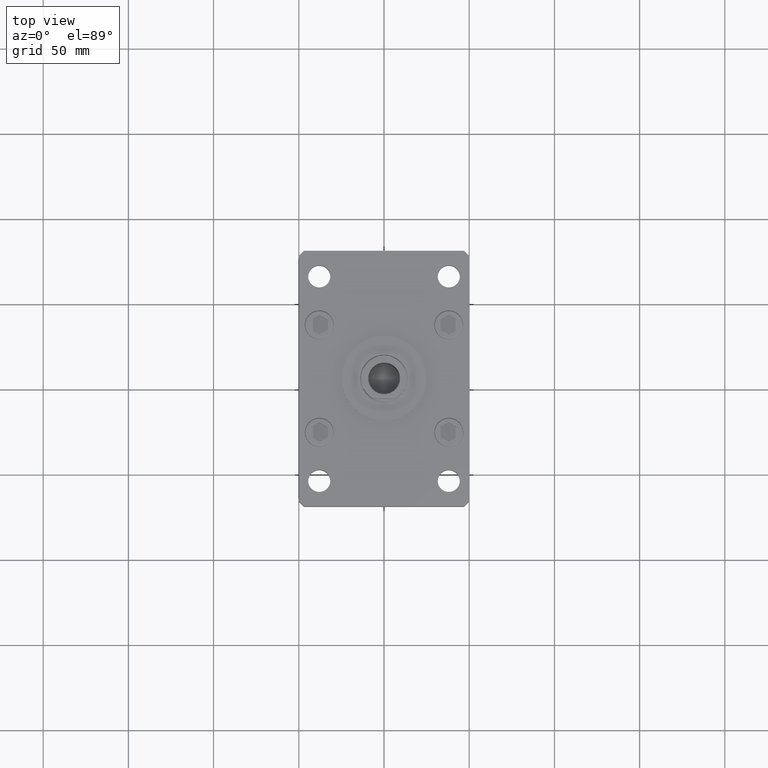
[diagram: clean part render]
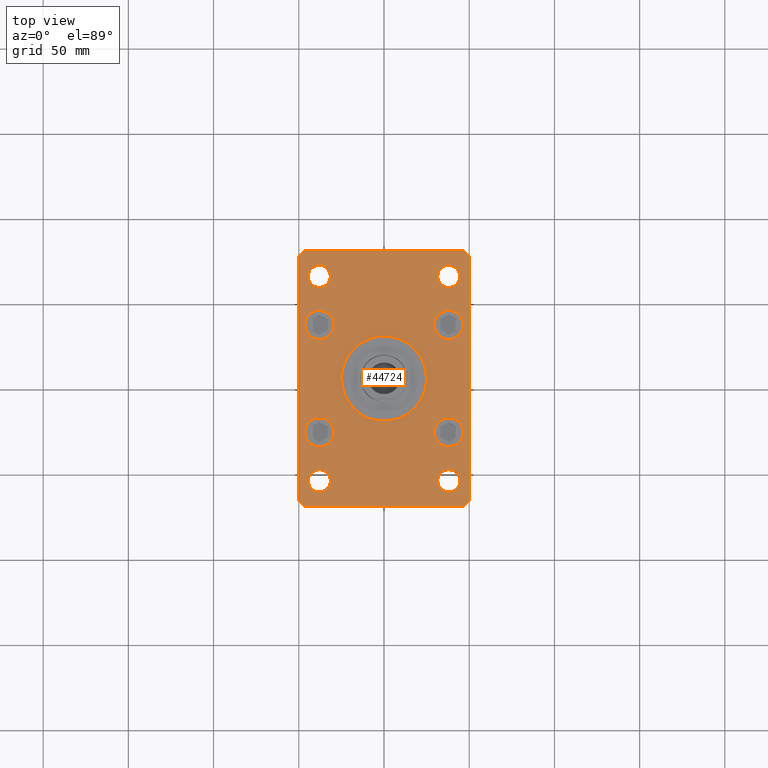
[diagram: same view with one face highlighted and labeled with its STEP entity id]
A machine part, top view. The second image highlights one B-rep face of the part: STEP entity #44724.
In plain terms, the highlighted planar face has unit normal (0, 0, 1).
Its self-contained STEP definition (entity closure, byte-faithful):
#54 = DIRECTION ( 'NONE',  ( 0.000000000000000000, 1.000000000000000000, 0.000000000000000000 ) ) ;
#81 = CARTESIAN_POINT ( 'NONE',  ( 47.00000000000002842, 75.00000000000002842, 20.00000000000000000 ) ) ;
#283 = ORIENTED_EDGE ( 'NONE', *, *, #19883, .F. ) ;
#544 = CARTESIAN_POINT ( 'NONE',  ( 0.000000000000000000, 0.000000000000000000, 20.00000000000000000 ) ) ;
#579 = DIRECTION ( 'NONE',  ( 1.000000000000000000, 0.000000000000000000, 0.000000000000000000 ) ) ;
#723 = CIRCLE ( 'NONE', #48583, 6.499999999999999112 ) ;
#762 = AXIS2_PLACEMENT_3D ( 'NONE', #33030, #49387, #24833 ) ;
#860 = VERTEX_POINT ( 'NONE', #41562 ) ;
#945 = CIRCLE ( 'NONE', #27060, 6.499999999999999112 ) ;
#1410 = VERTEX_POINT ( 'NONE', #44909 ) ;
#1613 = AXIS2_PLACEMENT_3D ( 'NONE', #43354, #26454, #13903 ) ;
#1641 = DIRECTION ( 'NONE',  ( 0.7071067811865459074, 0.7071067811865491270, 0.000000000000000000 ) ) ;
#2108 = ORIENTED_EDGE ( 'NONE', *, *, #11136, .T. ) ;
#2305 = CARTESIAN_POINT ( 'NONE',  ( 50.00000000000000000, 72.00000000000001421, 20.00000000000000000 ) ) ;
#2529 = DIRECTION ( 'NONE',  ( 1.000000000000000000, 0.000000000000000000, 0.000000000000000000 ) ) ;
#2579 = LINE ( 'NONE', #53019, #33737 ) ;
#2664 = CARTESIAN_POINT ( 'NONE',  ( 47.00000000000001421, -74.99999999999988631, 20.00000000000000000 ) ) ;
#2931 = DIRECTION ( 'NONE',  ( 0.000000000000000000, 0.000000000000000000, 1.000000000000000000 ) ) ;
#3053 = DIRECTION ( 'NONE',  ( 0.000000000000000000, 0.000000000000000000, 1.000000000000000000 ) ) ;
#3127 = DIRECTION ( 'NONE',  ( 0.000000000000000000, 0.000000000000000000, 1.000000000000000000 ) ) ;
#3198 = EDGE_CURVE ( 'NONE', #41342, #9299, #31098, .T. ) ;
#3334 = DIRECTION ( 'NONE',  ( 0.000000000000000000, 0.000000000000000000, 1.000000000000000000 ) ) ;
#3470 = AXIS2_PLACEMENT_3D ( 'NONE', #39918, #3053, #15873 ) ;
#3713 = ORIENTED_EDGE ( 'NONE', *, *, #15737, .F. ) ;
#4234 = EDGE_LOOP ( 'NONE', ( #283, #26803 ) ) ;
#4297 = DIRECTION ( 'NONE',  ( 0.000000000000000000, 0.000000000000000000, 1.000000000000000000 ) ) ;
#4326 = VECTOR ( 'NONE', #54, 1000.000000000000000 ) ;
#4356 = FACE_OUTER_BOUND ( 'NONE', #24127, .T. ) ;
#4362 = AXIS2_PLACEMENT_3D ( 'NONE', #544, #33825, #50450 ) ;
#4592 = EDGE_LOOP ( 'NONE', ( #10708, #17007 ) ) ;
#4666 = VERTEX_POINT ( 'NONE', #19176 ) ;
#4924 = CARTESIAN_POINT ( 'NONE',  ( -47.00000000000002842, 75.00000000000000000, 20.00000000000000000 ) ) ;
#5116 = DIRECTION ( 'NONE',  ( -0.7071067811865459074, -0.7071067811865491270, 0.000000000000000000 ) ) ;
#5373 = DIRECTION ( 'NONE',  ( 1.000000000000000000, 0.000000000000000000, 0.000000000000000000 ) ) ;
#5549 = DIRECTION ( 'NONE',  ( 1.000000000000000000, 0.000000000000000000, 0.000000000000000000 ) ) ;
#5663 = ORIENTED_EDGE ( 'NONE', *, *, #3198, .F. ) ;
#5810 = DIRECTION ( 'NONE',  ( 0.000000000000000000, 0.000000000000000000, 1.000000000000000000 ) ) ;
#6004 = VERTEX_POINT ( 'NONE', #43233 ) ;
#6076 = CARTESIAN_POINT ( 'NONE',  ( -38.00000000000000711, 31.50000000000000000, 20.00000000000000000 ) ) ;
#6080 = DIRECTION ( 'NONE',  ( 1.000000000000000000, 0.000000000000000000, 0.000000000000000000 ) ) ;
#6133 = CARTESIAN_POINT ( 'NONE',  ( -44.49999999999997868, -60.00000000000000711, 20.00000000000000000 ) ) ;
#6474 = VERTEX_POINT ( 'NONE', #51222 ) ;
#6527 = VERTEX_POINT ( 'NONE', #18458 ) ;
#6558 = EDGE_LOOP ( 'NONE', ( #5663, #47607 ) ) ;
#6606 = CIRCLE ( 'NONE', #37994, 6.499999999999999112 ) ;
#7422 = CARTESIAN_POINT ( 'NONE',  ( -37.99999999999999289, 59.99999999999999289, 20.00000000000000000 ) ) ;
#7537 = AXIS2_PLACEMENT_3D ( 'NONE', #53656, #2931, #16015 ) ;
#7880 = ORIENTED_EDGE ( 'NONE', *, *, #40442, .F. ) ;
#7892 = CARTESIAN_POINT ( 'NONE',  ( -31.49999999999997868, -60.00000000000000711, 20.00000000000000000 ) ) ;
#8117 = EDGE_CURVE ( 'NONE', #53841, #28875, #29208, .T. ) ;
#8419 = ORIENTED_EDGE ( 'NONE', *, *, #44319, .F. ) ;
#8432 = FACE_BOUND ( 'NONE', #23503, .T. ) ;
#8853 = EDGE_CURVE ( 'NONE', #51268, #49509, #2579, .T. ) ;
#8859 = CIRCLE ( 'NONE', #46346, 8.499999999999992895 ) ;
#9181 = EDGE_LOOP ( 'NONE', ( #32046, #16807 ) ) ;
#9299 = VERTEX_POINT ( 'NONE', #24040 ) ;
#9786 = AXIS2_PLACEMENT_3D ( 'NONE', #51383, #27097, #35017 ) ;
#10358 = ORIENTED_EDGE ( 'NONE', *, *, #33056, .T. ) ;
#10385 = CARTESIAN_POINT ( 'NONE',  ( -25.00000000000000000, 0.000000000000000000, 20.00000000000000000 ) ) ;
#10451 = CARTESIAN_POINT ( 'NONE',  ( -46.50000000000000711, 31.50000000000000000, 20.00000000000000000 ) ) ;
#10669 = AXIS2_PLACEMENT_3D ( 'NONE', #6076, #5810, #5549 ) ;
#10708 = ORIENTED_EDGE ( 'NONE', *, *, #41456, .F. ) ;
#10980 = DIRECTION ( 'NONE',  ( 0.000000000000000000, 0.000000000000000000, 1.000000000000000000 ) ) ;
#11052 = DIRECTION ( 'NONE',  ( 0.000000000000000000, 0.000000000000000000, 1.000000000000000000 ) ) ;
#11136 = EDGE_CURVE ( 'NONE', #28875, #37137, #47199, .T. ) ;
#11190 = CARTESIAN_POINT ( 'NONE',  ( 31.49999999999997868, -60.00000000000000711, 20.00000000000000000 ) ) ;
#11193 = CIRCLE ( 'NONE', #762, 8.499999999999992895 ) ;
#11779 = DIRECTION ( 'NONE',  ( 0.000000000000000000, 0.000000000000000000, 1.000000000000000000 ) ) ;
#11992 = AXIS2_PLACEMENT_3D ( 'NONE', #29677, #4297, #5373 ) ;
#12187 = CARTESIAN_POINT ( 'NONE',  ( 50.00000000000000000, -71.99999999999988631, 20.00000000000000000 ) ) ;
#12322 = CARTESIAN_POINT ( 'NONE',  ( 50.00000000000000000, -71.99999999999988631, 20.00000000000000000 ) ) ;
#12537 = FACE_BOUND ( 'NONE', #4234, .T. ) ;
#13010 = CIRCLE ( 'NONE', #19958, 8.499999999999992895 ) ;
#13080 = FACE_BOUND ( 'NONE', #45528, .T. ) ;
#13143 = ORIENTED_EDGE ( 'NONE', *, *, #40531, .T. ) ;
#13365 = VERTEX_POINT ( 'NONE', #6133 ) ;
#13390 = DIRECTION ( 'NONE',  ( 0.000000000000000000, 0.000000000000000000, 1.000000000000000000 ) ) ;
#13761 = VECTOR ( 'NONE', #1641, 1000.000000000000114 ) ;
#13903 = DIRECTION ( 'NONE',  ( 1.000000000000000000, 0.000000000000000000, 0.000000000000000000 ) ) ;
#14186 = EDGE_CURVE ( 'NONE', #25294, #18160, #15561, .T. ) ;
#14191 = CIRCLE ( 'NONE', #27277, 6.499999999999999112 ) ;
#14930 = ORIENTED_EDGE ( 'NONE', *, *, #8117, .T. ) ;
#15086 = CARTESIAN_POINT ( 'NONE',  ( -50.00000000000001421, 72.00000000000000000, 20.00000000000000000 ) ) ;
#15561 = CIRCLE ( 'NONE', #34750, 25.00000000000000000 ) ;
#15595 = EDGE_CURVE ( 'NONE', #30275, #53841, #30670, .T. ) ;
#15657 = CIRCLE ( 'NONE', #3470, 6.499999999999999112 ) ;
#15696 = EDGE_CURVE ( 'NONE', #52929, #44799, #52453, .T. ) ;
#15737 = EDGE_CURVE ( 'NONE', #6004, #48142, #24631, .T. ) ;
#15863 = EDGE_CURVE ( 'NONE', #48142, #6004, #29877, .T. ) ;
#15873 = DIRECTION ( 'NONE',  ( 1.000000000000000000, 0.000000000000000000, 0.000000000000000000 ) ) ;
#16015 = DIRECTION ( 'NONE',  ( 1.000000000000000000, 0.000000000000000000, 0.000000000000000000 ) ) ;
#16177 = DIRECTION ( 'NONE',  ( 0.000000000000000000, 0.000000000000000000, 1.000000000000000000 ) ) ;
#16807 = ORIENTED_EDGE ( 'NONE', *, *, #17606, .F. ) ;
#17007 = ORIENTED_EDGE ( 'NONE', *, *, #40830, .F. ) ;
#17039 = CARTESIAN_POINT ( 'NONE',  ( -37.99999999999997868, -60.00000000000000711, 20.00000000000000000 ) ) ;
#17606 = EDGE_CURVE ( 'NONE', #6527, #40120, #14191, .T. ) ;
#18160 = VERTEX_POINT ( 'NONE', #10385 ) ;
#18458 = CARTESIAN_POINT ( 'NONE',  ( -31.49999999999999289, 59.99999999999999289, 20.00000000000000000 ) ) ;
#18682 = ORIENTED_EDGE ( 'NONE', *, *, #22777, .T. ) ;
#18886 = DIRECTION ( 'NONE',  ( 0.000000000000000000, 0.000000000000000000, 1.000000000000000000 ) ) ;
#19176 = CARTESIAN_POINT ( 'NONE',  ( -29.50000000000000711, -31.50000000000000000, 20.00000000000000000 ) ) ;
#19342 = VECTOR ( 'NONE', #22718, 1000.000000000000114 ) ;
#19883 = EDGE_CURVE ( 'NONE', #18160, #25294, #34344, .T. ) ;
#19958 = AXIS2_PLACEMENT_3D ( 'NONE', #52437, #18886, #6080 ) ;
#20456 = VERTEX_POINT ( 'NONE', #47769 ) ;
#20917 = CARTESIAN_POINT ( 'NONE',  ( -47.00000000000000000, -75.00000000000000000, 20.00000000000000000 ) ) ;
#21267 = FACE_BOUND ( 'NONE', #4592, .T. ) ;
#21627 = VECTOR ( 'NONE', #26857, 1000.000000000000000 ) ;
#21816 = CARTESIAN_POINT ( 'NONE',  ( 0.000000000000000000, 0.000000000000000000, 20.00000000000000000 ) ) ;
#21923 = CIRCLE ( 'NONE', #28900, 8.500000000000000000 ) ;
#22062 = EDGE_LOOP ( 'NONE', ( #7880, #33837 ) ) ;
#22718 = DIRECTION ( 'NONE',  ( 0.7071067811865474617, -0.7071067811865474617, 0.000000000000000000 ) ) ;
#22777 = EDGE_CURVE ( 'NONE', #42298, #30275, #48051, .T. ) ;
#23503 = EDGE_LOOP ( 'NONE', ( #39885, #3713 ) ) ;
#24040 = CARTESIAN_POINT ( 'NONE',  ( 44.49999999999997868, -60.00000000000000711, 20.00000000000000000 ) ) ;
#24076 = DIRECTION ( 'NONE',  ( 1.000000000000000000, 0.000000000000000000, 0.000000000000000000 ) ) ;
#24127 = EDGE_LOOP ( 'NONE', ( #14930, #2108, #37356, #40391, #13143, #10358, #18682, #37039 ) ) ;
#24261 = CIRCLE ( 'NONE', #1613, 8.499999999999992895 ) ;
#24631 = CIRCLE ( 'NONE', #10669, 8.500000000000000000 ) ;
#24833 = DIRECTION ( 'NONE',  ( 1.000000000000000000, 0.000000000000000000, 0.000000000000000000 ) ) ;
#25031 = CARTESIAN_POINT ( 'NONE',  ( -49.99999999999998579, -72.00000000000001421, 20.00000000000000000 ) ) ;
#25087 = FACE_BOUND ( 'NONE', #9181, .T. ) ;
#25294 = VERTEX_POINT ( 'NONE', #26375 ) ;
#25304 = CARTESIAN_POINT ( 'NONE',  ( -44.49999999999999289, 59.99999999999999289, 20.00000000000000000 ) ) ;
#25362 = FACE_BOUND ( 'NONE', #6558, .T. ) ;
#25397 = CARTESIAN_POINT ( 'NONE',  ( 0.000000000000000000, 0.000000000000000000, 20.00000000000000000 ) ) ;
#25581 = LINE ( 'NONE', #46317, #52823 ) ;
#26375 = CARTESIAN_POINT ( 'NONE',  ( 25.00000000000000000, 3.061616997868383043E-15, 20.00000000000000000 ) ) ;
#26454 = DIRECTION ( 'NONE',  ( 0.000000000000000000, 0.000000000000000000, 1.000000000000000000 ) ) ;
#26803 = ORIENTED_EDGE ( 'NONE', *, *, #14186, .F. ) ;
#26804 = DIRECTION ( 'NONE',  ( 1.927470528863118802E-16, -1.000000000000000000, 0.000000000000000000 ) ) ;
#26857 = DIRECTION ( 'NONE',  ( -1.000000000000000000, -2.952720810173287140E-16, 0.000000000000000000 ) ) ;
#27060 = AXIS2_PLACEMENT_3D ( 'NONE', #7422, #10980, #24076 ) ;
#27097 = DIRECTION ( 'NONE',  ( 0.000000000000000000, 0.000000000000000000, 1.000000000000000000 ) ) ;
#27277 = AXIS2_PLACEMENT_3D ( 'NONE', #40522, #3127, #49236 ) ;
#28214 = AXIS2_PLACEMENT_3D ( 'NONE', #21816, #31074, #43618 ) ;
#28642 = VERTEX_POINT ( 'NONE', #7892 ) ;
#28875 = VERTEX_POINT ( 'NONE', #2664 ) ;
#28900 = AXIS2_PLACEMENT_3D ( 'NONE', #41307, #16177, #53008 ) ;
#29208 = LINE ( 'NONE', #36846, #47670 ) ;
#29345 = EDGE_CURVE ( 'NONE', #28642, #13365, #6606, .T. ) ;
#29677 = CARTESIAN_POINT ( 'NONE',  ( -38.00000000000000711, -31.50000000000000000, 20.00000000000000000 ) ) ;
#29877 = CIRCLE ( 'NONE', #43797, 8.500000000000000000 ) ;
#29891 = ORIENTED_EDGE ( 'NONE', *, *, #47025, .F. ) ;
#30229 = VERTEX_POINT ( 'NONE', #37051 ) ;
#30275 = VERTEX_POINT ( 'NONE', #25031 ) ;
#30645 = CARTESIAN_POINT ( 'NONE',  ( -50.00000000000001421, 72.00000000000000000, 20.00000000000000000 ) ) ;
#30670 = LINE ( 'NONE', #39382, #19342 ) ;
#31074 = DIRECTION ( 'NONE',  ( 0.000000000000000000, 0.000000000000000000, 1.000000000000000000 ) ) ;
#31098 = CIRCLE ( 'NONE', #7537, 6.499999999999999112 ) ;
#31806 = CARTESIAN_POINT ( 'NONE',  ( 37.99999999999999289, 31.49999999999999289, 20.00000000000000000 ) ) ;
#32046 = ORIENTED_EDGE ( 'NONE', *, *, #48195, .F. ) ;
#32261 = DIRECTION ( 'NONE',  ( 1.000000000000000000, 0.000000000000000000, 0.000000000000000000 ) ) ;
#32792 = CARTESIAN_POINT ( 'NONE',  ( -38.00000000000000711, 31.50000000000000000, 20.00000000000000000 ) ) ;
#33030 = CARTESIAN_POINT ( 'NONE',  ( 37.99999999999999289, -31.49999999999999289, 20.00000000000000000 ) ) ;
#33056 = EDGE_CURVE ( 'NONE', #34822, #42298, #25581, .T. ) ;
#33554 = FACE_BOUND ( 'NONE', #44936, .T. ) ;
#33698 = DIRECTION ( 'NONE',  ( 0.000000000000000000, 0.000000000000000000, 1.000000000000000000 ) ) ;
#33737 = VECTOR ( 'NONE', #52750, 1000.000000000000000 ) ;
#33825 = DIRECTION ( 'NONE',  ( 0.000000000000000000, 0.000000000000000000, 1.000000000000000000 ) ) ;
#33837 = ORIENTED_EDGE ( 'NONE', *, *, #29345, .F. ) ;
#34344 = CIRCLE ( 'NONE', #28214, 25.00000000000000000 ) ;
#34750 = AXIS2_PLACEMENT_3D ( 'NONE', #25397, #13390, #579 ) ;
#34822 = VERTEX_POINT ( 'NONE', #4924 ) ;
#35017 = DIRECTION ( 'NONE',  ( 1.000000000000000000, 0.000000000000000000, 0.000000000000000000 ) ) ;
#35042 = LINE ( 'NONE', #39147, #21627 ) ;
#35156 = CARTESIAN_POINT ( 'NONE',  ( 31.50000000000000000, 59.99999999999998579, 20.00000000000000000 ) ) ;
#36846 = CARTESIAN_POINT ( 'NONE',  ( -47.00000000000000000, -75.00000000000000000, 20.00000000000000000 ) ) ;
#37039 = ORIENTED_EDGE ( 'NONE', *, *, #15595, .T. ) ;
#37051 = CARTESIAN_POINT ( 'NONE',  ( 29.49999999999999645, 31.49999999999999289, 20.00000000000000000 ) ) ;
#37137 = VERTEX_POINT ( 'NONE', #12187 ) ;
#37356 = ORIENTED_EDGE ( 'NONE', *, *, #43623, .T. ) ;
#37445 = CARTESIAN_POINT ( 'NONE',  ( -37.99999999999997868, -60.00000000000000711, 20.00000000000000000 ) ) ;
#37880 = ORIENTED_EDGE ( 'NONE', *, *, #51336, .F. ) ;
#37994 = AXIS2_PLACEMENT_3D ( 'NONE', #37445, #3334, #32261 ) ;
#39026 = CARTESIAN_POINT ( 'NONE',  ( 47.00000000000001421, -74.99999999999988631, 20.00000000000000000 ) ) ;
#39035 = EDGE_CURVE ( 'NONE', #860, #4666, #43355, .T. ) ;
#39147 = CARTESIAN_POINT ( 'NONE',  ( 47.00000000000002842, 75.00000000000002842, 20.00000000000000000 ) ) ;
#39382 = CARTESIAN_POINT ( 'NONE',  ( -49.99999999999998579, -72.00000000000001421, 20.00000000000000000 ) ) ;
#39695 = ORIENTED_EDGE ( 'NONE', *, *, #51682, .F. ) ;
#39885 = ORIENTED_EDGE ( 'NONE', *, *, #15863, .F. ) ;
#39918 = CARTESIAN_POINT ( 'NONE',  ( 38.00000000000000000, 59.99999999999998579, 20.00000000000000000 ) ) ;
#40120 = VERTEX_POINT ( 'NONE', #25304 ) ;
#40266 = DIRECTION ( 'NONE',  ( 1.000000000000000000, 0.000000000000000000, 0.000000000000000000 ) ) ;
#40391 = ORIENTED_EDGE ( 'NONE', *, *, #8853, .T. ) ;
#40442 = EDGE_CURVE ( 'NONE', #13365, #28642, #723, .T. ) ;
#40522 = CARTESIAN_POINT ( 'NONE',  ( -37.99999999999999289, 59.99999999999999289, 20.00000000000000000 ) ) ;
#40531 = EDGE_CURVE ( 'NONE', #49509, #34822, #35042, .T. ) ;
#40830 = EDGE_CURVE ( 'NONE', #6474, #20456, #24261, .T. ) ;
#40849 = ORIENTED_EDGE ( 'NONE', *, *, #15696, .F. ) ;
#40963 = AXIS2_PLACEMENT_3D ( 'NONE', #46100, #45292, #41745 ) ;
#41307 = CARTESIAN_POINT ( 'NONE',  ( -38.00000000000000711, -31.50000000000000000, 20.00000000000000000 ) ) ;
#41342 = VERTEX_POINT ( 'NONE', #11190 ) ;
#41456 = EDGE_CURVE ( 'NONE', #20456, #6474, #11193, .T. ) ;
#41562 = CARTESIAN_POINT ( 'NONE',  ( -46.50000000000000711, -31.50000000000000000, 20.00000000000000000 ) ) ;
#41742 = FACE_BOUND ( 'NONE', #22062, .T. ) ;
#41745 = DIRECTION ( 'NONE',  ( 1.000000000000000000, 0.000000000000000000, 0.000000000000000000 ) ) ;
#42013 = PLANE ( 'NONE',  #4362 ) ;
#42298 = VERTEX_POINT ( 'NONE', #15086 ) ;
#42704 = DIRECTION ( 'NONE',  ( 1.000000000000000000, 0.000000000000000000, 0.000000000000000000 ) ) ;
#43233 = CARTESIAN_POINT ( 'NONE',  ( -29.50000000000000711, 31.50000000000000000, 20.00000000000000000 ) ) ;
#43354 = CARTESIAN_POINT ( 'NONE',  ( 37.99999999999999289, -31.49999999999999289, 20.00000000000000000 ) ) ;
#43355 = CIRCLE ( 'NONE', #11992, 8.500000000000000000 ) ;
#43618 = DIRECTION ( 'NONE',  ( 1.000000000000000000, 0.000000000000000000, 0.000000000000000000 ) ) ;
#43623 = EDGE_CURVE ( 'NONE', #37137, #51268, #50503, .T. ) ;
#43797 = AXIS2_PLACEMENT_3D ( 'NONE', #32792, #11779, #2529 ) ;
#44319 = EDGE_CURVE ( 'NONE', #1410, #30229, #13010, .T. ) ;
#44724 = ADVANCED_FACE ( 'NONE', ( #12537, #8432, #21267, #25087, #41742, #4356, #13080, #33554, #46097, #25362 ), #42013, .T. ) ;
#44799 = VERTEX_POINT ( 'NONE', #35156 ) ;
#44909 = CARTESIAN_POINT ( 'NONE',  ( 46.49999999999998579, 31.49999999999999289, 20.00000000000000000 ) ) ;
#44936 = EDGE_LOOP ( 'NONE', ( #49068, #37880 ) ) ;
#45020 = DIRECTION ( 'NONE',  ( 1.000000000000000000, 1.181088324069315250E-15, 0.000000000000000000 ) ) ;
#45292 = DIRECTION ( 'NONE',  ( 0.000000000000000000, 0.000000000000000000, 1.000000000000000000 ) ) ;
#45528 = EDGE_LOOP ( 'NONE', ( #29891, #40849 ) ) ;
#46097 = FACE_BOUND ( 'NONE', #52289, .T. ) ;
#46100 = CARTESIAN_POINT ( 'NONE',  ( 37.99999999999997868, -60.00000000000000711, 20.00000000000000000 ) ) ;
#46317 = CARTESIAN_POINT ( 'NONE',  ( -47.00000000000002842, 75.00000000000000000, 20.00000000000000000 ) ) ;
#46346 = AXIS2_PLACEMENT_3D ( 'NONE', #31806, #11052, #40266 ) ;
#47025 = EDGE_CURVE ( 'NONE', #44799, #52929, #15657, .T. ) ;
#47199 = LINE ( 'NONE', #39026, #13761 ) ;
#47525 = EDGE_CURVE ( 'NONE', #9299, #41342, #52275, .T. ) ;
#47607 = ORIENTED_EDGE ( 'NONE', *, *, #47525, .F. ) ;
#47670 = VECTOR ( 'NONE', #45020, 1000.000000000000000 ) ;
#47769 = CARTESIAN_POINT ( 'NONE',  ( 29.49999999999999645, -31.49999999999999289, 20.00000000000000000 ) ) ;
#48051 = LINE ( 'NONE', #30645, #51687 ) ;
#48142 = VERTEX_POINT ( 'NONE', #10451 ) ;
#48195 = EDGE_CURVE ( 'NONE', #40120, #6527, #945, .T. ) ;
#48583 = AXIS2_PLACEMENT_3D ( 'NONE', #17039, #33698, #42704 ) ;
#49068 = ORIENTED_EDGE ( 'NONE', *, *, #39035, .F. ) ;
#49236 = DIRECTION ( 'NONE',  ( 1.000000000000000000, 0.000000000000000000, 0.000000000000000000 ) ) ;
#49387 = DIRECTION ( 'NONE',  ( 0.000000000000000000, 0.000000000000000000, 1.000000000000000000 ) ) ;
#49509 = VERTEX_POINT ( 'NONE', #81 ) ;
#50450 = DIRECTION ( 'NONE',  ( 1.000000000000000000, 0.000000000000000000, -0.000000000000000000 ) ) ;
#50503 = LINE ( 'NONE', #12322, #4326 ) ;
#51222 = CARTESIAN_POINT ( 'NONE',  ( 46.49999999999998579, -31.49999999999999289, 20.00000000000000000 ) ) ;
#51268 = VERTEX_POINT ( 'NONE', #2305 ) ;
#51336 = EDGE_CURVE ( 'NONE', #4666, #860, #21923, .T. ) ;
#51383 = CARTESIAN_POINT ( 'NONE',  ( 38.00000000000000000, 59.99999999999998579, 20.00000000000000000 ) ) ;
#51682 = EDGE_CURVE ( 'NONE', #30229, #1410, #8859, .T. ) ;
#51687 = VECTOR ( 'NONE', #26804, 1000.000000000000000 ) ;
#52275 = CIRCLE ( 'NONE', #40963, 6.499999999999999112 ) ;
#52289 = EDGE_LOOP ( 'NONE', ( #39695, #8419 ) ) ;
#52437 = CARTESIAN_POINT ( 'NONE',  ( 37.99999999999999289, 31.49999999999999289, 20.00000000000000000 ) ) ;
#52453 = CIRCLE ( 'NONE', #9786, 6.499999999999999112 ) ;
#52750 = DIRECTION ( 'NONE',  ( -0.7071067811865426878, 0.7071067811865524577, 0.000000000000000000 ) ) ;
#52823 = VECTOR ( 'NONE', #5116, 1000.000000000000114 ) ;
#52929 = VERTEX_POINT ( 'NONE', #53572 ) ;
#53008 = DIRECTION ( 'NONE',  ( 1.000000000000000000, 0.000000000000000000, 0.000000000000000000 ) ) ;
#53019 = CARTESIAN_POINT ( 'NONE',  ( 50.00000000000000000, 72.00000000000001421, 20.00000000000000000 ) ) ;
#53572 = CARTESIAN_POINT ( 'NONE',  ( 44.50000000000000000, 59.99999999999998579, 20.00000000000000000 ) ) ;
#53656 = CARTESIAN_POINT ( 'NONE',  ( 37.99999999999997868, -60.00000000000000711, 20.00000000000000000 ) ) ;
#53841 = VERTEX_POINT ( 'NONE', #20917 ) ;